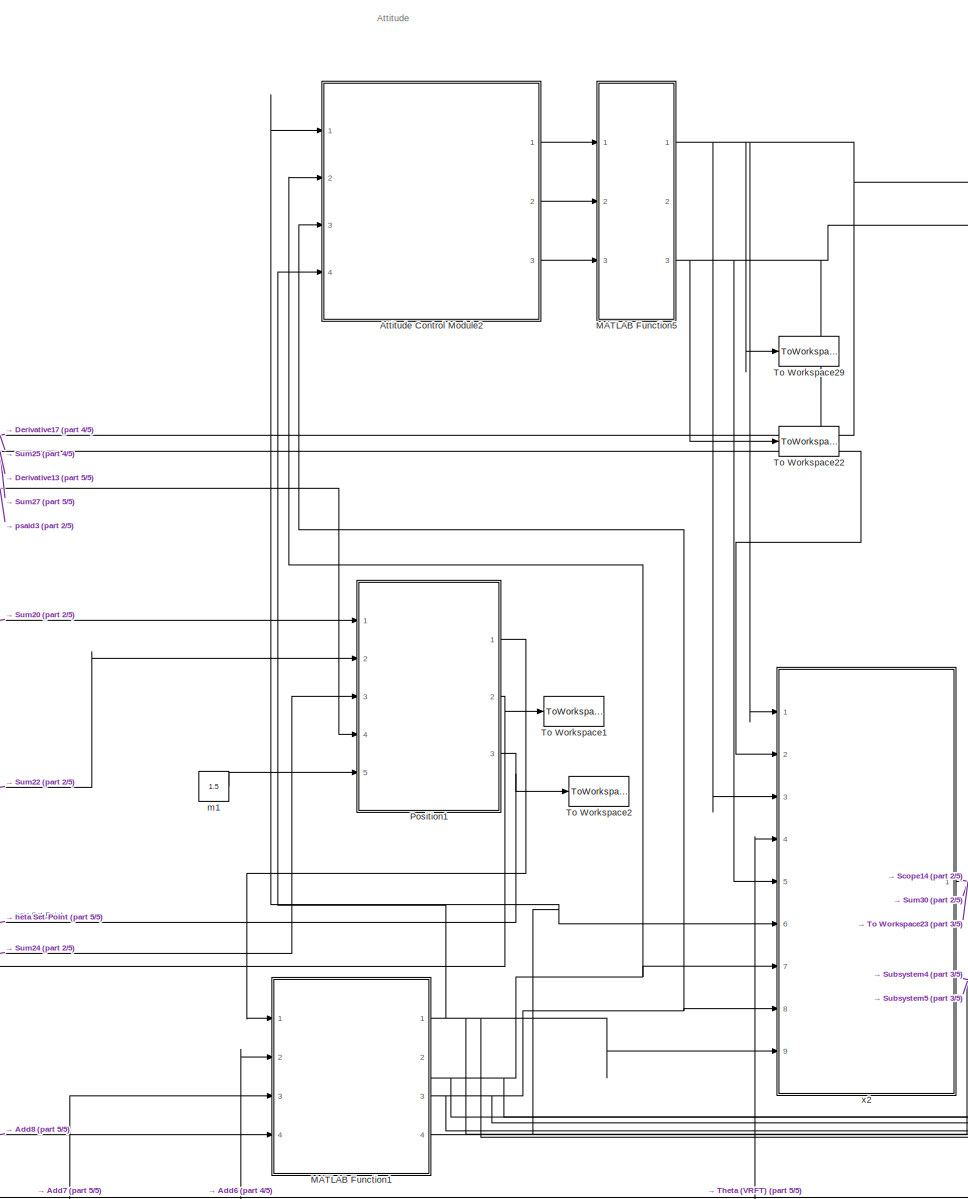
[diagram: root canvas - part 1/5, top center region]
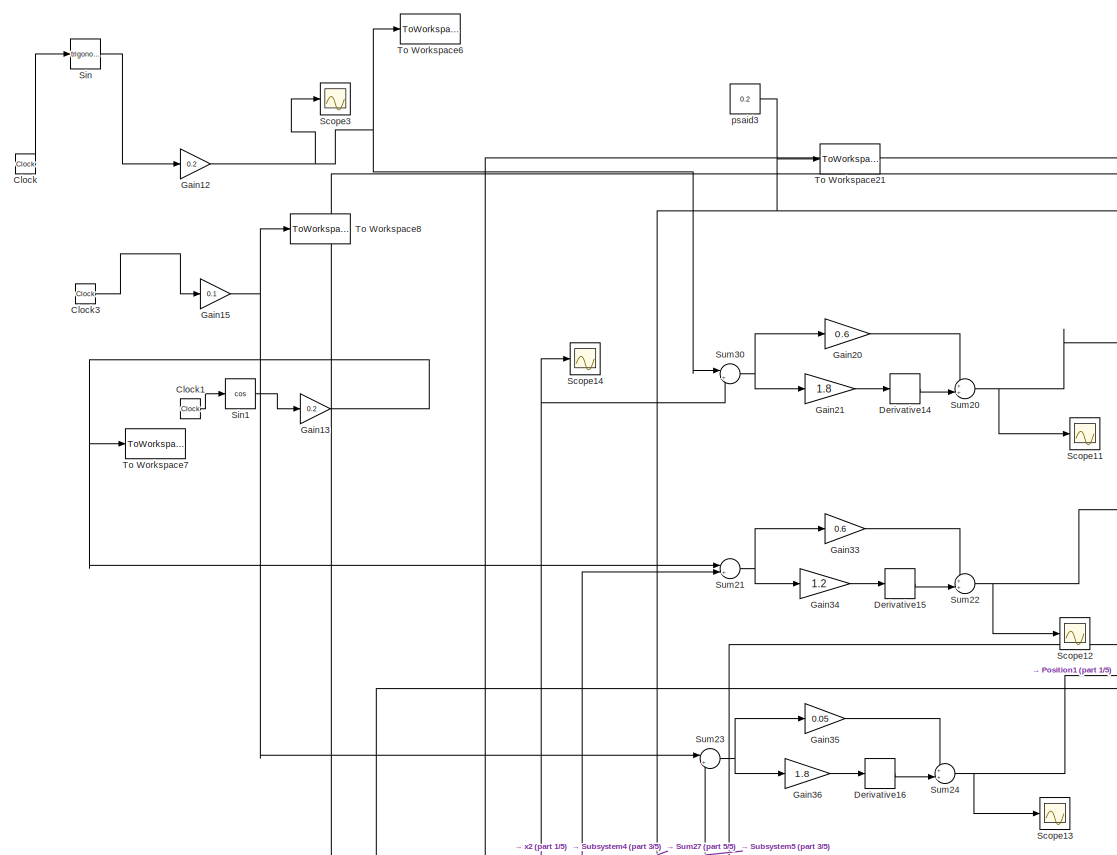
[diagram: root canvas - part 2/5, middle left region]
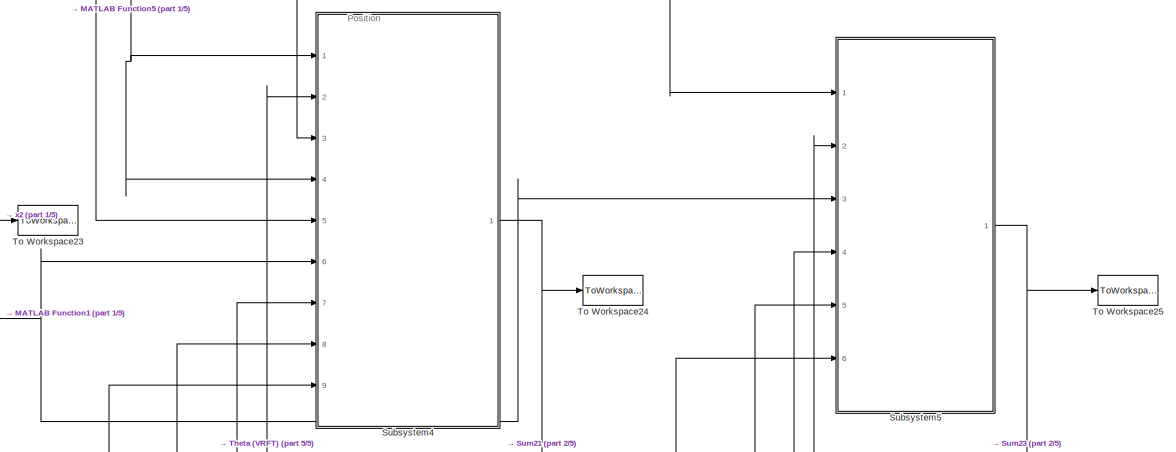
[diagram: root canvas - part 3/5, middle right region]
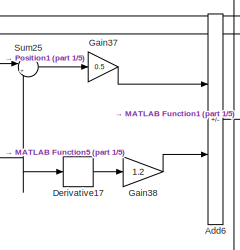
[diagram: root canvas - part 4/5, middle left region]
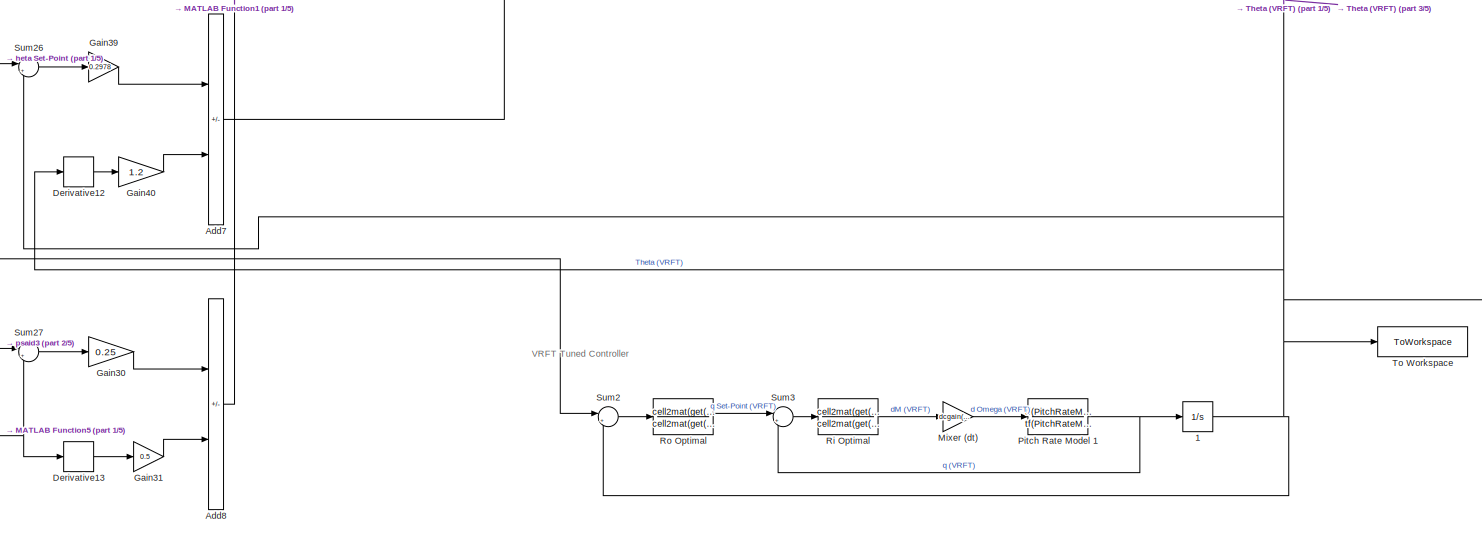
[diagram: root canvas - part 5/5, bottom center region]
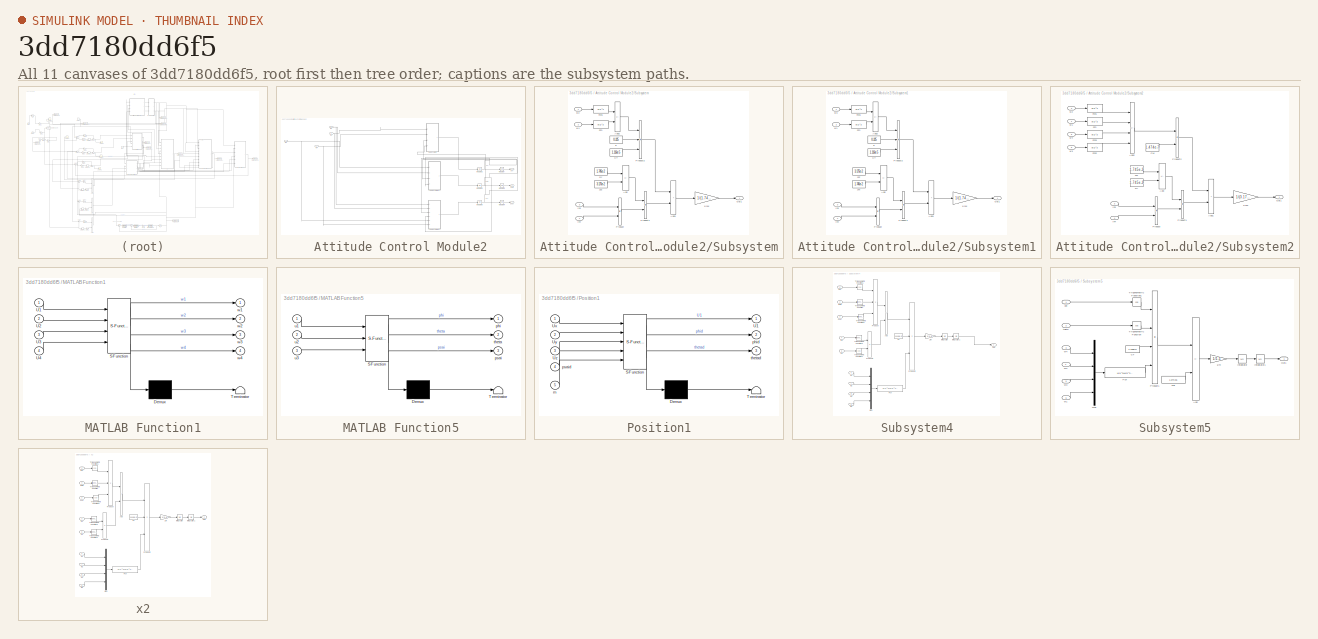
[diagram: thumbnail index - all 11 canvases of the model, root first then tree order]
MODEL slx_3dd7180dd6f5
KIND model
CONFIG AbsTol = auto
CONFIG EnableMultiTasking = off
CONFIG FixedStep = 0.1
CONFIG MaxStep = auto
CONFIG MinStep = auto
CONFIG RelTol = 1e-3
CONFIG SampleTimeConstraint = Unconstrained
CONFIG SolverName = FixedStepAuto
CONFIG StartTime = 0.0
CONFIG StopTime = 100
BLOCK [Integrator]  1
  ContinuousStateAttributes = 'PitchAngle'
  Ports = [1, 1]
BLOCK [Sum] Add6
  IconShape = rectangular
  Inputs = +-
  Ports = [2, 1]
BLOCK [Sum] Add7
  IconShape = rectangular
  Inputs = +-
  Ports = [2, 1]
BLOCK [Sum] Add8
  IconShape = rectangular
  Inputs = +-
  Ports = [2, 1]
BLOCK [SubSystem] Attitude Control Module2
  Ports = [4, 3]
  RequestExecContextInheritance = off
BLOCK [Integrator] Attitude Control Module2/Integrator
  Ports = [1, 1]
BLOCK [Integrator] Attitude Control Module2/Integrator1
  Ports = [1, 1]
BLOCK [Integrator] Attitude Control Module2/Integrator2
  Ports = [1, 1]
BLOCK [Integrator] Attitude Control Module2/Integrator3
  Ports = [1, 1]
BLOCK [Integrator] Attitude Control Module2/Integrator4
  Ports = [1, 1]
BLOCK [Integrator] Attitude Control Module2/Integrator5
  Ports = [1, 1]
BLOCK [SubSystem] Attitude Control Module2/Subsystem
  Ports = [4, 1]
  RequestExecContextInheritance = off
BLOCK [Gain] Attitude Control Module2/Subsystem/1//Jxx
  Gain = 1/(1.745e-2)
BLOCK [Sum] Attitude Control Module2/Subsystem/Add
  IconShape = rectangular
  Inputs = +-
  Ports = [2, 1]
BLOCK [Sum] Attitude Control Module2/Subsystem/Add1
  IconShape = rectangular
  Ports = [2, 1]
BLOCK [Sum] Attitude Control Module2/Subsystem/Add2
  IconShape = rectangular
  Inputs = +-
  Ports = [2, 1]
BLOCK [Constant] Attitude Control Module2/Subsystem/CT
  Value = 1.116e-5
BLOCK [Fcn] Attitude Control Module2/Subsystem/Fcn
  Expr = u(1)^2
BLOCK [Fcn] Attitude Control Module2/Subsystem/Fcn1
  Expr = u(1)^2
BLOCK [Inport] Attitude Control Module2/Subsystem/In3
  Port = 3
BLOCK [Inport] Attitude Control Module2/Subsystem/In4
  Port = 4
BLOCK [Constant] Attitude Control Module2/Subsystem/Jyy
  Value = 1.745e-2
BLOCK [Constant] Attitude Control Module2/Subsystem/Jzz 
  Value = 3.175e-2
BLOCK [Outport] Attitude Control Module2/Subsystem/Out1
  VectorParamsAs1DForOutWhenUnconnected = off
BLOCK [Product] Attitude Control Module2/Subsystem/Product
  Ports = [2, 1]
BLOCK [Product] Attitude Control Module2/Subsystem/Product1
  Ports = [2, 1]
BLOCK [Product] Attitude Control Module2/Subsystem/Product2
  Inputs = 3
  Ports = [3, 1]
BLOCK [Constant] Attitude Control Module2/Subsystem/d
  Value = 0.225
BLOCK [Inport] Attitude Control Module2/Subsystem/w2
BLOCK [Inport] Attitude Control Module2/Subsystem/w4
  Port = 2
BLOCK [SubSystem] Attitude Control Module2/Subsystem1
  Ports = [4, 1]
  RequestExecContextInheritance = off
BLOCK [Gain] Attitude Control Module2/Subsystem1/1//Jxx
  Gain = 1/(1.745e-2)
BLOCK [Sum] Attitude Control Module2/Subsystem1/Add
  IconShape = rectangular
  Inputs = +-
  Ports = [2, 1]
BLOCK [Sum] Attitude Control Module2/Subsystem1/Add1
  IconShape = rectangular
  Ports = [2, 1]
BLOCK [Sum] Attitude Control Module2/Subsystem1/Add2
  IconShape = rectangular
  Inputs = +-
  Ports = [2, 1]
BLOCK [Constant] Attitude Control Module2/Subsystem1/CT
  Value = 1.116e-5
BLOCK [Fcn] Attitude Control Module2/Subsystem1/Fcn
  Expr = u(1)^2
BLOCK [Fcn] Attitude Control Module2/Subsystem1/Fcn1
  Expr = u(1)^2
BLOCK [Inport] Attitude Control Module2/Subsystem1/In3
  Port = 3
BLOCK [Inport] Attitude Control Module2/Subsystem1/In4
  Port = 4
BLOCK [Constant] Attitude Control Module2/Subsystem1/Jxx
  Value = 1.745e-2
BLOCK [Constant] Attitude Control Module2/Subsystem1/Jzz
  Value = 3.175e-2
BLOCK [Outport] Attitude Control Module2/Subsystem1/Out1
  VectorParamsAs1DForOutWhenUnconnected = off
BLOCK [Product] Attitude Control Module2/Subsystem1/Product
  Ports = [2, 1]
BLOCK [Product] Attitude Control Module2/Subsystem1/Product1
  Ports = [2, 1]
BLOCK [Product] Attitude Control Module2/Subsystem1/Product2
  Inputs = 3
  Ports = [3, 1]
BLOCK [Constant] Attitude Control Module2/Subsystem1/d
  Value = 0.225
BLOCK [Inport] Attitude Control Module2/Subsystem1/w1
  Port = 2
BLOCK [Inport] Attitude Control Module2/Subsystem1/w3
BLOCK [SubSystem] Attitude Control Module2/Subsystem2
  Ports = [6, 1]
  RequestExecContextInheritance = off
BLOCK [Gain] Attitude Control Module2/Subsystem2/1//Jxx
  Gain = 1/(3.175e-2)
BLOCK [Sum] Attitude Control Module2/Subsystem2/Add
  IconShape = rectangular
  Inputs = +-
  Ports = [2, 1]
BLOCK [Sum] Attitude Control Module2/Subsystem2/Add1
  IconShape = rectangular
  Ports = [2, 1]
BLOCK [Sum] Attitude Control Module2/Subsystem2/Add2
  IconShape = rectangular
  Inputs = +-+-
  Ports = [4, 1]
BLOCK [Constant] Attitude Control Module2/Subsystem2/CM
  Value = 1.474e-7
BLOCK [Fcn] Attitude Control Module2/Subsystem2/Fcn
  Expr = u(1)^2
BLOCK [Fcn] Attitude Control Module2/Subsystem2/Fcn1
  Expr = u(1)^2
BLOCK [Fcn] Attitude Control Module2/Subsystem2/Fcn2
  Expr = u(1)^2
BLOCK [Fcn] Attitude Control Module2/Subsystem2/Fcn3
  Expr = u(1)^2
BLOCK [Inport] Attitude Control Module2/Subsystem2/In3
  Port = 3
BLOCK [Inport] Attitude Control Module2/Subsystem2/In4
  Port = 4
BLOCK [Constant] Attitude Control Module2/Subsystem2/Jxx
  Value = 1.745e-2
BLOCK [Constant] Attitude Control Module2/Subsystem2/Jyy
  Value = 1.745e-2
BLOCK [Outport] Attitude Control Module2/Subsystem2/Out1
  VectorParamsAs1DForOutWhenUnconnected = off
BLOCK [Product] Attitude Control Module2/Subsystem2/Product
  Ports = [2, 1]
BLOCK [Product] Attitude Control Module2/Subsystem2/Product1
  Ports = [2, 1]
BLOCK [Product] Attitude Control Module2/Subsystem2/Product2
  Ports = [2, 1]
BLOCK [Inport] Attitude Control Module2/Subsystem2/w1
BLOCK [Inport] Attitude Control Module2/Subsystem2/w2
  Port = 2
BLOCK [Inport] Attitude Control Module2/Subsystem2/w3
  Port = 5
BLOCK [Inport] Attitude Control Module2/Subsystem2/w4
  Port = 6
BLOCK [Outport] Attitude Control Module2/phi
  VectorParamsAs1DForOutWhenUnconnected = off
BLOCK [Outport] Attitude Control Module2/psai
  Port = 3
  VectorParamsAs1DForOutWhenUnconnected = off
BLOCK [Outport] Attitude Control Module2/theta
  Port = 2
  VectorParamsAs1DForOutWhenUnconnected = off
BLOCK [Inport] Attitude Control Module2/w1
  Port = 4
BLOCK [Inport] Attitude Control Module2/w2
  Port = 2
BLOCK [Inport] Attitude Control Module2/w3
  Port = 3
BLOCK [Inport] Attitude Control Module2/w4
BLOCK [Clock] Clock
BLOCK [Clock] Clock1
BLOCK [Clock] Clock3
BLOCK [Derivative] Derivative12
BLOCK [Derivative] Derivative13
BLOCK [Derivative] Derivative14
BLOCK [Derivative] Derivative15
BLOCK [Derivative] Derivative16
BLOCK [Derivative] Derivative17
BLOCK [Gain] Gain12
  Gain = 0.2
BLOCK [Gain] Gain13
  Gain = 0.2
BLOCK [Gain] Gain15
  Gain = 0.1
BLOCK [Gain] Gain20
  Gain = 0.6
BLOCK [Gain] Gain21
  Gain = 1.8
BLOCK [Gain] Gain30
  Gain = 0.25
BLOCK [Gain] Gain31
  Gain = 0.5
BLOCK [Gain] Gain33
  Gain = 0.6
BLOCK [Gain] Gain34
  Gain = 1.2
BLOCK [Gain] Gain35
  Gain = 0.05
BLOCK [Gain] Gain36
  Gain = 1.8
BLOCK [Gain] Gain37
  Gain = 0.5
BLOCK [Gain] Gain38
  Gain = 1.2
BLOCK [Gain] Gain39
  Gain = 0.2978
BLOCK [Gain] Gain40
  Gain = 1.2
BLOCK [SubSystem] MATLAB Function1
  ErrorFcn = Stateflow.Translate.translate
  PermitHierarchicalResolution = ExplicitOnly
  Ports = [4, 4]
  RequestExecContextInheritance = off
  SFBlockType = MATLAB Function
  TreatAsAtomicUnit = on
BLOCK [Demux] MATLAB Function1/ Demux 
  Outputs = 1
  Ports = [1, 1]
BLOCK [S-Function] MATLAB Function1/ SFunction 
  EnableBusSupport = on
  FunctionName = sf_sfun
  PortCounts = [4 5]
  Ports = [4, 5]
  SFcnIsStateOwnerBlock = off
  SFunctionDeploymentMode = off
  Tag = Stateflow S-Function 3
BLOCK [Terminator] MATLAB Function1/ Terminator 
BLOCK [Inport] MATLAB Function1/U1
BLOCK [Inport] MATLAB Function1/U2
  Port = 2
BLOCK [Inport] MATLAB Function1/U3
  Port = 3
BLOCK [Inport] MATLAB Function1/U4
  Port = 4
BLOCK [Outport] MATLAB Function1/w1
  VectorParamsAs1DForOutWhenUnconnected = off
BLOCK [Outport] MATLAB Function1/w2
  Port = 2
  VectorParamsAs1DForOutWhenUnconnected = off
BLOCK [Outport] MATLAB Function1/w3
  Port = 3
  VectorParamsAs1DForOutWhenUnconnected = off
BLOCK [Outport] MATLAB Function1/w4
  Port = 4
  VectorParamsAs1DForOutWhenUnconnected = off
BLOCK [SubSystem] MATLAB Function5
  ErrorFcn = Stateflow.Translate.translate
  PermitHierarchicalResolution = ExplicitOnly
  Ports = [3, 3]
  RequestExecContextInheritance = off
  SFBlockType = MATLAB Function
  TreatAsAtomicUnit = on
BLOCK [Demux] MATLAB Function5/ Demux 
  Outputs = 1
  Ports = [1, 1]
BLOCK [S-Function] MATLAB Function5/ SFunction 
  EnableBusSupport = on
  FunctionName = sf_sfun
  PortCounts = [3 4]
  Ports = [3, 4]
  SFcnIsStateOwnerBlock = off
  SFunctionDeploymentMode = off
  Tag = Stateflow S-Function 1
BLOCK [Terminator] MATLAB Function5/ Terminator 
BLOCK [Outport] MATLAB Function5/phi
  VectorParamsAs1DForOutWhenUnconnected = off
BLOCK [Outport] MATLAB Function5/psai
  Port = 3
  VectorParamsAs1DForOutWhenUnconnected = off
BLOCK [Outport] MATLAB Function5/theta
  Port = 2
  VectorParamsAs1DForOutWhenUnconnected = off
BLOCK [Inport] MATLAB Function5/u1
BLOCK [Inport] MATLAB Function5/u2
  Port = 2
BLOCK [Inport] MATLAB Function5/u3
  Port = 3
BLOCK [Gain] Mixer (dt)
  Gain = dcgain(Mixer)
BLOCK [TransferFcn] Pitch Rate Model 1
  ContinuousStateAttributes = 'PitchRate'
  Denominator = tf(PitchRateModel).Denominator{:}
  Numerator = tf(PitchRateModel).Numerator{:}
BLOCK [SubSystem] Position1
  ErrorFcn = Stateflow.Translate.translate
  PermitHierarchicalResolution = ExplicitOnly
  Ports = [5, 3]
  RequestExecContextInheritance = off
  SFBlockType = MATLAB Function
  TreatAsAtomicUnit = on
BLOCK [Demux] Position1/ Demux 
  Outputs = 1
  Ports = [1, 1]
BLOCK [S-Function] Position1/ SFunction 
  EnableBusSupport = on
  FunctionName = sf_sfun
  PortCounts = [5 4]
  Ports = [5, 4]
  SFcnIsStateOwnerBlock = off
  SFunctionDeploymentMode = off
  Tag = Stateflow S-Function 4
BLOCK [Terminator] Position1/ Terminator 
BLOCK [Outport] Position1/U1
  VectorParamsAs1DForOutWhenUnconnected = off
BLOCK [Inport] Position1/Ux
BLOCK [Inport] Position1/Uy
  Port = 2
BLOCK [Inport] Position1/Uz
  Port = 3
BLOCK [Inport] Position1/m
  Port = 5
BLOCK [Outport] Position1/phid
  Port = 2
  VectorParamsAs1DForOutWhenUnconnected = off
BLOCK [Inport] Position1/psaid
  Port = 4
BLOCK [Outport] Position1/thetad
  Port = 3
  VectorParamsAs1DForOutWhenUnconnected = off
BLOCK [TransferFcn] Ri Optimal 
  Denominator = cell2mat(get(tf(OptimalInnerController), 'Denominator'))
  Numerator = cell2mat(get(tf(OptimalInnerController), 'Numerator'))
BLOCK [TransferFcn] Ro Optimal
  Denominator = cell2mat(get(tf(OptimalOuterController), 'Denominator'))
  Numerator = cell2mat(get(tf(OptimalOuterController), 'Numerator'))
BLOCK [Scope] Scope11
  Floating = off
  NumInputPorts = 1
  Ports = [1]
  ScopeSpecificationString = Simulink.scopes.TimeScopeBlockCfg('CurrentConfiguration', extmgr.ConfigurationSet(extmgr.Configuration('Core','General UI',true),extmgr.Configuration('Core','Source UI',true),extmgr.Configuration('Sources','WiredSimulink',true,'DataLoggingVariableName','ScopeData1'),extmgr.Configuration('Visuals','Time Domain',true,'SerializedDisplays',{struct('MinYLimReal','-0.19028','MaxYLimReal','0.21254','YLab...<+1391ch>
BLOCK [Scope] Scope12
  Floating = off
  NumInputPorts = 1
  Ports = [1]
  ScopeSpecificationString = Simulink.scopes.TimeScopeBlockCfg('CurrentConfiguration', extmgr.ConfigurationSet(extmgr.Configuration('Core','General UI',true),extmgr.Configuration('Core','Source UI',true),extmgr.Configuration('Sources','WiredSimulink',true,'DataLoggingVariableName','ScopeData2'),extmgr.Configuration('Visuals','Time Domain',true,'SerializedDisplays',{struct('MinYLimReal','-0.13767','MaxYLimReal','0.10974','YLab...<+1364ch>
BLOCK [Scope] Scope13
  Floating = off
  NumInputPorts = 1
  Ports = [1]
  ScopeSpecificationString = Simulink.scopes.TimeScopeBlockCfg('CurrentConfiguration', extmgr.ConfigurationSet(extmgr.Configuration('Core','General UI',true),extmgr.Configuration('Core','Source UI',true),extmgr.Configuration('Sources','WiredSimulink',true,'DataLoggingVariableName','ScopeData3'),extmgr.Configuration('Visuals','Time Domain',true,'SerializedDisplays',{struct('MinYLimReal','-0.00636','MaxYLimReal','0.0364','YLabe...<+1360ch>
BLOCK [Scope] Scope14
  Floating = off
  NumInputPorts = 1
  Ports = [1]
  ScopeSpecificationString = Simulink.scopes.TimeScopeBlockCfg('CurrentConfiguration', extmgr.ConfigurationSet(extmgr.Configuration('Core','General UI',true),extmgr.Configuration('Core','Source UI',true),extmgr.Configuration('Sources','WiredSimulink',true,'DataLoggingVariableName','ScopeData4'),extmgr.Configuration('Visuals','Time Domain',true,'SerializedDisplays',{struct('MinYLimReal','-8.03998','MaxYLimReal','1.82933','YLab...<+1361ch>
BLOCK [Scope] Scope3
  Floating = off
  NumInputPorts = 1
  Ports = [1]
  ScopeSpecificationString = Simulink.scopes.TimeScopeBlockCfg('CurrentConfiguration', extmgr.ConfigurationSet(extmgr.Configuration('Core','General UI',true),extmgr.Configuration('Core','Source UI',true),extmgr.Configuration('Sources','WiredSimulink',true),extmgr.Configuration('Visuals','Time Domain',true,'SerializedDisplays',{struct('MinYLimReal','-2.5','MaxYLimReal','2.5','YLabelReal','','MinYLimMag','0.00000','MaxYLimMag',...<+1340ch>
BLOCK [Trigonometry] Sin
  Ports = [1, 1]
BLOCK [Trigonometry] Sin1
  Operator = cos
  Ports = [1, 1]
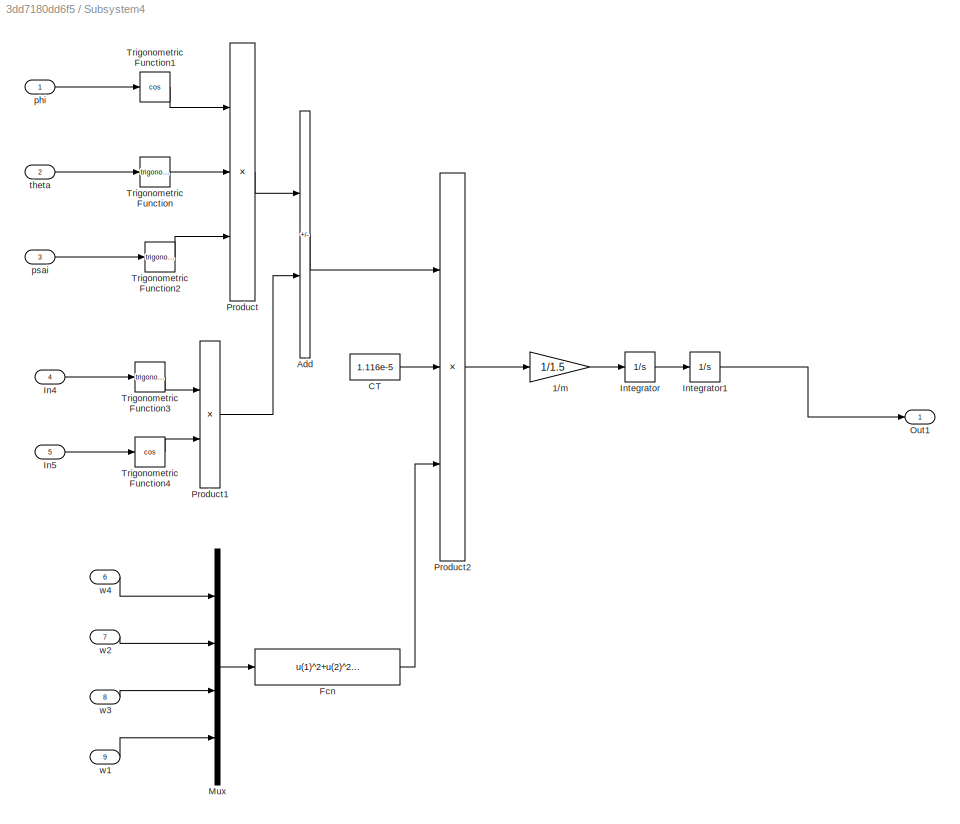
BLOCK [SubSystem] Subsystem4
  Ports = [9, 1]
  RequestExecContextInheritance = off
BLOCK [Gain] Subsystem4/1//m
  Gain = 1/1.5
BLOCK [Sum] Subsystem4/Add
  IconShape = rectangular
  Inputs = +-
  Ports = [2, 1]
BLOCK [Constant] Subsystem4/CT
  Value = 1.116e-5
BLOCK [Fcn] Subsystem4/Fcn
  Expr = u(1)^2+u(2)^2+u(3)^2+u(4)^2
BLOCK [Inport] Subsystem4/In4
  Port = 4
BLOCK [Inport] Subsystem4/In5
  Port = 5
BLOCK [Integrator] Subsystem4/Integrator
  Ports = [1, 1]
BLOCK [Integrator] Subsystem4/Integrator1
  Ports = [1, 1]
BLOCK [Mux] Subsystem4/Mux
  DisplayOption = bar
  Ports = [4, 1]
BLOCK [Outport] Subsystem4/Out1
  VectorParamsAs1DForOutWhenUnconnected = off
BLOCK [Product] Subsystem4/Product
  Inputs = 3
  Ports = [3, 1]
BLOCK [Product] Subsystem4/Product1
  Ports = [2, 1]
BLOCK [Product] Subsystem4/Product2
  Inputs = 3
  Ports = [3, 1]
BLOCK [Trigonometry] Subsystem4/Trigonometric Function
  Ports = [1, 1]
BLOCK [Trigonometry] Subsystem4/Trigonometric Function1
  Operator = cos
  Ports = [1, 1]
BLOCK [Trigonometry] Subsystem4/Trigonometric Function2
  Ports = [1, 1]
BLOCK [Trigonometry] Subsystem4/Trigonometric Function3
  Ports = [1, 1]
BLOCK [Trigonometry] Subsystem4/Trigonometric Function4
  Operator = cos
  Ports = [1, 1]
BLOCK [Inport] Subsystem4/phi
BLOCK [Inport] Subsystem4/psai
  Port = 3
BLOCK [Inport] Subsystem4/theta
  Port = 2
BLOCK [Inport] Subsystem4/w1
  Port = 9
BLOCK [Inport] Subsystem4/w2
  Port = 7
BLOCK [Inport] Subsystem4/w3
  Port = 8
BLOCK [Inport] Subsystem4/w4
  Port = 6
BLOCK [SubSystem] Subsystem5
  Ports = [6, 1]
  RequestExecContextInheritance = off
BLOCK [Gain] Subsystem5/1//m
  Gain = 1/1.5
BLOCK [Sum] Subsystem5/Add
  IconShape = rectangular
  Inputs = +-
  Ports = [2, 1]
BLOCK [Constant] Subsystem5/CT
  Value = 1.116e-5
BLOCK [Fcn] Subsystem5/Fcn
  Expr = u(1)^2+u(2)^2+u(3)^2+u(4)^2
BLOCK [Integrator] Subsystem5/Integrator
  Ports = [1, 1]
BLOCK [Integrator] Subsystem5/Integrator1
  Ports = [1, 1]
BLOCK [Mux] Subsystem5/Mux
  DisplayOption = bar
  Ports = [4, 1]
BLOCK [Outport] Subsystem5/Out1
  VectorParamsAs1DForOutWhenUnconnected = off
BLOCK [Product] Subsystem5/Product1
  Inputs = 4
  Ports = [4, 1]
BLOCK [Trigonometry] Subsystem5/Trigonometric Function
  Operator = cos
  Ports = [1, 1]
BLOCK [Trigonometry] Subsystem5/Trigonometric Function1
  Operator = cos
  Ports = [1, 1]
BLOCK [Constant] Subsystem5/mg
  Value = 1.5*9.81
BLOCK [Inport] Subsystem5/phi
BLOCK [Inport] Subsystem5/theta
  Port = 2
BLOCK [Inport] Subsystem5/w1
  Port = 6
BLOCK [Inport] Subsystem5/w2
  Port = 4
BLOCK [Inport] Subsystem5/w3
  Port = 5
BLOCK [Inport] Subsystem5/w4
  Port = 3
BLOCK [Sum] Sum2
  Inputs = |+-
  Ports = [2, 1]
BLOCK [Sum] Sum20
  Inputs = ++|
  Ports = [2, 1]
BLOCK [Sum] Sum21
  Inputs = |+-
  Ports = [2, 1]
BLOCK [Sum] Sum22
  Inputs = ++|
  Ports = [2, 1]
BLOCK [Sum] Sum23
  Inputs = |+-
  Ports = [2, 1]
BLOCK [Sum] Sum24
  Inputs = ++|
  Ports = [2, 1]
BLOCK [Sum] Sum25
  Inputs = |+-
  Ports = [2, 1]
BLOCK [Sum] Sum26
  Inputs = |+-
  Ports = [2, 1]
BLOCK [Sum] Sum27
  Inputs = |+-
  Ports = [2, 1]
BLOCK [Sum] Sum3
  Inputs = |+-
  Ports = [2, 1]
BLOCK [Sum] Sum30
  Inputs = |+-
  Ports = [2, 1]
BLOCK [ToWorkspace] To Workspace
  FixptAsFi = on
  MaxDataPoints = inf
  Ports = [1]
  SampleTime = -1
  VariableName = theta
BLOCK [ToWorkspace] To Workspace1
  FixptAsFi = on
  MaxDataPoints = inf
  Ports = [1]
  SampleTime = -1
  VariableName = phid
BLOCK [ToWorkspace] To Workspace2
  FixptAsFi = on
  MaxDataPoints = inf
  Ports = [1]
  SampleTime = -1
  VariableName = thetad
BLOCK [ToWorkspace] To Workspace21
  FixptAsFi = on
  MaxDataPoints = inf
  Ports = [1]
  SampleTime = -1
  VariableName = psid
BLOCK [ToWorkspace] To Workspace22
  FixptAsFi = on
  MaxDataPoints = inf
  Ports = [1]
  SampleTime = -1
  VariableName = psi
BLOCK [ToWorkspace] To Workspace23
  FixptAsFi = on
  MaxDataPoints = inf
  Ports = [1]
  SampleTime = -1
  VariableName = x
BLOCK [ToWorkspace] To Workspace24
  FixptAsFi = on
  MaxDataPoints = inf
  Ports = [1]
  SampleTime = -1
  VariableName = y
BLOCK [ToWorkspace] To Workspace25
  FixptAsFi = on
  MaxDataPoints = inf
  Ports = [1]
  SampleTime = -1
  VariableName = z
BLOCK [ToWorkspace] To Workspace29
  FixptAsFi = on
  MaxDataPoints = inf
  Ports = [1]
  SampleTime = -1
  VariableName = phi
BLOCK [ToWorkspace] To Workspace6
  FixptAsFi = on
  MaxDataPoints = inf
  Ports = [1]
  SampleTime = -1
  VariableName = xd
BLOCK [ToWorkspace] To Workspace7
  FixptAsFi = on
  MaxDataPoints = inf
  Ports = [1]
  SampleTime = -1
  VariableName = yd
BLOCK [ToWorkspace] To Workspace8
  FixptAsFi = on
  MaxDataPoints = inf
  Ports = [1]
  SampleTime = -1
  VariableName = zd
BLOCK [Constant] m1
  Value = 1.5
BLOCK [Constant] psaid3
  Value = 0.2
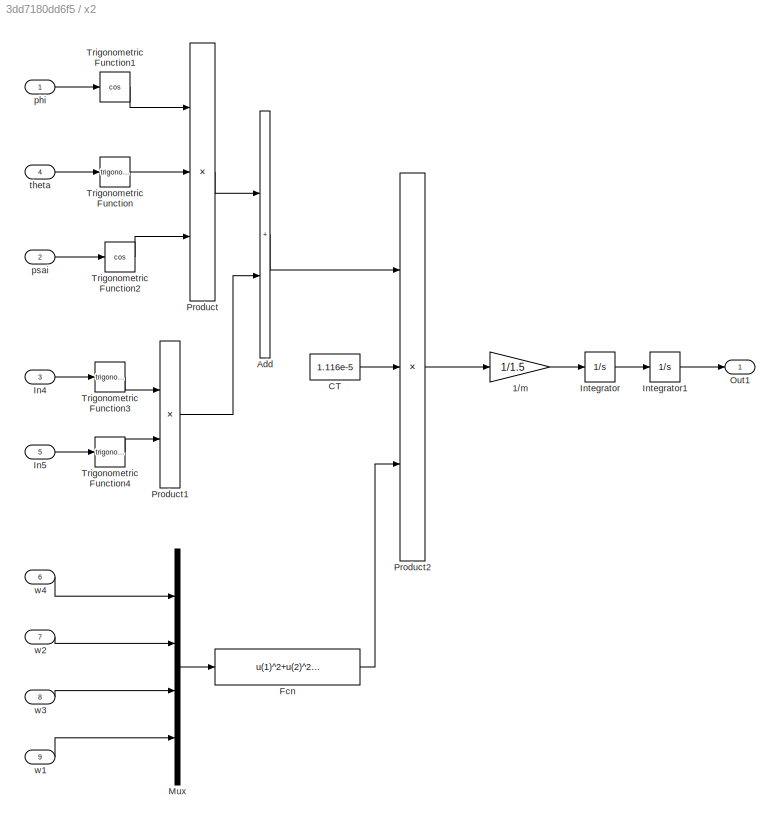
BLOCK [SubSystem] x2
  Ports = [9, 1]
  RequestExecContextInheritance = off
BLOCK [Gain] x2/1//m
  Gain = 1/1.5
BLOCK [Sum] x2/Add
  IconShape = rectangular
  Ports = [2, 1]
BLOCK [Constant] x2/CT
  Value = 1.116e-5
BLOCK [Fcn] x2/Fcn
  Expr = u(1)^2+u(2)^2+u(3)^2+u(4)^2
BLOCK [Inport] x2/In4
  Port = 3
BLOCK [Inport] x2/In5
  Port = 5
BLOCK [Integrator] x2/Integrator
  Ports = [1, 1]
BLOCK [Integrator] x2/Integrator1
  Ports = [1, 1]
BLOCK [Mux] x2/Mux
  DisplayOption = bar
  Ports = [4, 1]
BLOCK [Outport] x2/Out1
  VectorParamsAs1DForOutWhenUnconnected = off
BLOCK [Product] x2/Product
  Inputs = 3
  Ports = [3, 1]
BLOCK [Product] x2/Product1
  Ports = [2, 1]
BLOCK [Product] x2/Product2
  Inputs = 3
  Ports = [3, 1]
BLOCK [Trigonometry] x2/Trigonometric Function
  Ports = [1, 1]
BLOCK [Trigonometry] x2/Trigonometric Function1
  Operator = cos
  Ports = [1, 1]
BLOCK [Trigonometry] x2/Trigonometric Function2
  Operator = cos
  Ports = [1, 1]
BLOCK [Trigonometry] x2/Trigonometric Function3
  Ports = [1, 1]
BLOCK [Trigonometry] x2/Trigonometric Function4
  Ports = [1, 1]
BLOCK [Inport] x2/phi
BLOCK [Inport] x2/psai
  Port = 2
BLOCK [Inport] x2/theta
  Port = 4
BLOCK [Inport] x2/w1
  Port = 9
BLOCK [Inport] x2/w2
  Port = 7
BLOCK [Inport] x2/w3
  Port = 8
BLOCK [Inport] x2/w4
  Port = 6
ANNOTATION (root): Position
ANNOTATION (root): Attitude
ANNOTATION (root): VRFT Tuned Controller
ANNOTATION Attitude Control Module2: phi
ANNOTATION Attitude Control Module2: psi
ANNOTATION Attitude Control Module2: theta
NET  1:1 -> Derivative12:1, Subsystem4:2, Subsystem5:2, Sum26:2, Sum2:2, To Workspace:1, x2:4
LINE Add6:1 -> MATLAB Function1:2
LINE Add7:1 -> MATLAB Function1:3
LINE Add8:1 -> MATLAB Function1:4
NET Attitude Control Module2/Integrator1:1 -> Attitude Control Module2/Integrator:1, Attitude Control Module2/Subsystem1:3, Attitude Control Module2/Subsystem2:3
LINE Attitude Control Module2/Integrator2:1 -> Attitude Control Module2/theta:1
NET Attitude Control Module2/Integrator3:1 -> Attitude Control Module2/Integrator2:1, Attitude Control Module2/Subsystem2:4, Attitude Control Module2/Subsystem:3
LINE Attitude Control Module2/Integrator4:1 -> Attitude Control Module2/psai:1
NET Attitude Control Module2/Integrator5:1 -> Attitude Control Module2/Integrator4:1, Attitude Control Module2/Subsystem1:4, Attitude Control Module2/Subsystem:4
LINE Attitude Control Module2/Integrator:1 -> Attitude Control Module2/phi:1
LINE Attitude Control Module2/Subsystem/1//Jxx:1 -> Attitude Control Module2/Subsystem/Out1:1
LINE Attitude Control Module2/Subsystem/Add1:1 -> Attitude Control Module2/Subsystem/1//Jxx:1
LINE Attitude Control Module2/Subsystem/Add2:1 -> Attitude Control Module2/Subsystem/Product2:1
LINE Attitude Control Module2/Subsystem/Add:1 -> Attitude Control Module2/Subsystem/Product1:1
LINE Attitude Control Module2/Subsystem/CT:1 -> Attitude Control Module2/Subsystem/Product2:3
LINE Attitude Control Module2/Subsystem/Fcn1:1 -> Attitude Control Module2/Subsystem/Add2:1
LINE Attitude Control Module2/Subsystem/Fcn:1 -> Attitude Control Module2/Subsystem/Add2:2
LINE Attitude Control Module2/Subsystem/In3:1 -> Attitude Control Module2/Subsystem/Product:1
LINE Attitude Control Module2/Subsystem/In4:1 -> Attitude Control Module2/Subsystem/Product:2
LINE Attitude Control Module2/Subsystem/Jyy:1 -> Attitude Control Module2/Subsystem/Add:1
LINE Attitude Control Module2/Subsystem/Jzz :1 -> Attitude Control Module2/Subsystem/Add:2
LINE Attitude Control Module2/Subsystem/Product1:1 -> Attitude Control Module2/Subsystem/Add1:2
LINE Attitude Control Module2/Subsystem/Product2:1 -> Attitude Control Module2/Subsystem/Add1:1
LINE Attitude Control Module2/Subsystem/Product:1 -> Attitude Control Module2/Subsystem/Product1:2
LINE Attitude Control Module2/Subsystem/d:1 -> Attitude Control Module2/Subsystem/Product2:2
LINE Attitude Control Module2/Subsystem/w2:1 -> Attitude Control Module2/Subsystem/Fcn1:1
LINE Attitude Control Module2/Subsystem/w4:1 -> Attitude Control Module2/Subsystem/Fcn:1
LINE Attitude Control Module2/Subsystem1/1//Jxx:1 -> Attitude Control Module2/Subsystem1/Out1:1
LINE Attitude Control Module2/Subsystem1/Add1:1 -> Attitude Control Module2/Subsystem1/1//Jxx:1
LINE Attitude Control Module2/Subsystem1/Add2:1 -> Attitude Control Module2/Subsystem1/Product2:1
LINE Attitude Control Module2/Subsystem1/Add:1 -> Attitude Control Module2/Subsystem1/Product1:1
LINE Attitude Control Module2/Subsystem1/CT:1 -> Attitude Control Module2/Subsystem1/Product2:3
LINE Attitude Control Module2/Subsystem1/Fcn1:1 -> Attitude Control Module2/Subsystem1/Add2:1
LINE Attitude Control Module2/Subsystem1/Fcn:1 -> Attitude Control Module2/Subsystem1/Add2:2
LINE Attitude Control Module2/Subsystem1/In3:1 -> Attitude Control Module2/Subsystem1/Product:1
LINE Attitude Control Module2/Subsystem1/In4:1 -> Attitude Control Module2/Subsystem1/Product:2
LINE Attitude Control Module2/Subsystem1/Jxx:1 -> Attitude Control Module2/Subsystem1/Add:2
LINE Attitude Control Module2/Subsystem1/Jzz:1 -> Attitude Control Module2/Subsystem1/Add:1
LINE Attitude Control Module2/Subsystem1/Product1:1 -> Attitude Control Module2/Subsystem1/Add1:2
LINE Attitude Control Module2/Subsystem1/Product2:1 -> Attitude Control Module2/Subsystem1/Add1:1
LINE Attitude Control Module2/Subsystem1/Product:1 -> Attitude Control Module2/Subsystem1/Product1:2
LINE Attitude Control Module2/Subsystem1/d:1 -> Attitude Control Module2/Subsystem1/Product2:2
LINE Attitude Control Module2/Subsystem1/w1:1 -> Attitude Control Module2/Subsystem1/Fcn:1
LINE Attitude Control Module2/Subsystem1/w3:1 -> Attitude Control Module2/Subsystem1/Fcn1:1
LINE Attitude Control Module2/Subsystem1:1 -> Attitude Control Module2/Integrator3:1
LINE Attitude Control Module2/Subsystem2/1//Jxx:1 -> Attitude Control Module2/Subsystem2/Out1:1
LINE Attitude Control Module2/Subsystem2/Add1:1 -> Attitude Control Module2/Subsystem2/1//Jxx:1
LINE Attitude Control Module2/Subsystem2/Add2:1 -> Attitude Control Module2/Subsystem2/Product2:1
LINE Attitude Control Module2/Subsystem2/Add:1 -> Attitude Control Module2/Subsystem2/Product1:1
LINE Attitude Control Module2/Subsystem2/CM:1 -> Attitude Control Module2/Subsystem2/Product2:2
LINE Attitude Control Module2/Subsystem2/Fcn1:1 -> Attitude Control Module2/Subsystem2/Add2:1
LINE Attitude Control Module2/Subsystem2/Fcn2:1 -> Attitude Control Module2/Subsystem2/Add2:4
LINE Attitude Control Module2/Subsystem2/Fcn3:1 -> Attitude Control Module2/Subsystem2/Add2:3
LINE Attitude Control Module2/Subsystem2/Fcn:1 -> Attitude Control Module2/Subsystem2/Add2:2
LINE Attitude Control Module2/Subsystem2/In3:1 -> Attitude Control Module2/Subsystem2/Product:1
LINE Attitude Control Module2/Subsystem2/In4:1 -> Attitude Control Module2/Subsystem2/Product:2
LINE Attitude Control Module2/Subsystem2/Jxx:1 -> Attitude Control Module2/Subsystem2/Add:1
LINE Attitude Control Module2/Subsystem2/Jyy:1 -> Attitude Control Module2/Subsystem2/Add:2
LINE Attitude Control Module2/Subsystem2/Product1:1 -> Attitude Control Module2/Subsystem2/Add1:2
LINE Attitude Control Module2/Subsystem2/Product2:1 -> Attitude Control Module2/Subsystem2/Add1:1
LINE Attitude Control Module2/Subsystem2/Product:1 -> Attitude Control Module2/Subsystem2/Product1:2
LINE Attitude Control Module2/Subsystem2/w1:1 -> Attitude Control Module2/Subsystem2/Fcn:1
LINE Attitude Control Module2/Subsystem2/w2:1 -> Attitude Control Module2/Subsystem2/Fcn1:1
LINE Attitude Control Module2/Subsystem2/w3:1 -> Attitude Control Module2/Subsystem2/Fcn2:1
LINE Attitude Control Module2/Subsystem2/w4:1 -> Attitude Control Module2/Subsystem2/Fcn3:1
LINE Attitude Control Module2/Subsystem2:1 -> Attitude Control Module2/Integrator5:1
LINE Attitude Control Module2/Subsystem:1 -> Attitude Control Module2/Integrator1:1
NET Attitude Control Module2/w1:1 -> Attitude Control Module2/Subsystem1:2, Attitude Control Module2/Subsystem2:1
NET Attitude Control Module2/w2:1 -> Attitude Control Module2/Subsystem2:2, Attitude Control Module2/Subsystem:1
NET Attitude Control Module2/w3:1 -> Attitude Control Module2/Subsystem1:1, Attitude Control Module2/Subsystem2:5
NET Attitude Control Module2/w4:1 -> Attitude Control Module2/Subsystem2:6, Attitude Control Module2/Subsystem:2
LINE Attitude Control Module2:1 -> MATLAB Function5:1
LINE Attitude Control Module2:2 -> MATLAB Function5:2
LINE Attitude Control Module2:3 -> MATLAB Function5:3
LINE Clock1:1 -> Sin1:1
LINE Clock3:1 -> Gain15:1
LINE Clock:1 -> Sin:1
LINE Derivative12:1 -> Gain40:1
LINE Derivative13:1 -> Gain31:1
LINE Derivative14:1 -> Sum20:2
LINE Derivative15:1 -> Sum22:2
LINE Derivative16:1 -> Sum24:2
LINE Derivative17:1 -> Gain38:1
NET Gain12:1 -> Scope3:1, Sum30:1, To Workspace6:1
NET Gain13:1 -> Sum21:1, To Workspace7:1
NET Gain15:1 -> Sum23:1, To Workspace8:1
LINE Gain20:1 -> Sum20:1
LINE Gain21:1 -> Derivative14:1
LINE Gain30:1 -> Add8:1
LINE Gain31:1 -> Add8:2
LINE Gain33:1 -> Sum22:1
LINE Gain34:1 -> Derivative15:1
LINE Gain35:1 -> Sum24:1
LINE Gain36:1 -> Derivative16:1
LINE Gain37:1 -> Add6:1
LINE Gain38:1 -> Add6:2
LINE Gain39:1 -> Add7:1
LINE Gain40:1 -> Add7:2
NET MATLAB Function1:1 -> Attitude Control Module2:4, Subsystem4:9, Subsystem5:6, x2:9
NET MATLAB Function1:2 -> Attitude Control Module2:2, Subsystem4:7, Subsystem5:4, x2:7
NET MATLAB Function1:3 -> Attitude Control Module2:3, Subsystem4:8, Subsystem5:5, x2:8
NET MATLAB Function1:4 -> Attitude Control Module2:1, Subsystem4:6, Subsystem5:3, x2:6
NET MATLAB Function5:1 -> Derivative17:1, Subsystem4:1, Subsystem4:4, Subsystem5:1, Sum25:2, To Workspace29:1, x2:1, x2:3
NET MATLAB Function5:3 -> Derivative13:1, Subsystem4:3, Subsystem4:5, Sum27:2, To Workspace22:1, x2:2, x2:5
LINE Mixer (dt):1 -> Pitch Rate Model 1:1
NET Pitch Rate Model 1:1 ->  1:1, Sum3:2
LINE Position1:1 -> MATLAB Function1:1
NET Position1:2 -> Sum25:1, To Workspace1:1
NET Position1:3 -> Sum26:1, Sum2:1, To Workspace2:1
LINE Ri Optimal :1 -> Mixer (dt):1
LINE Ro Optimal:1 -> Sum3:1
LINE Sin1:1 -> Gain13:1
LINE Sin:1 -> Gain12:1
LINE Subsystem4/1//m:1 -> Subsystem4/Integrator:1
LINE Subsystem4/Add:1 -> Subsystem4/Product2:1
LINE Subsystem4/CT:1 -> Subsystem4/Product2:2
LINE Subsystem4/Fcn:1 -> Subsystem4/Product2:3
LINE Subsystem4/In4:1 -> Subsystem4/Trigonometric Function3:1
LINE Subsystem4/In5:1 -> Subsystem4/Trigonometric Function4:1
LINE Subsystem4/Integrator1:1 -> Subsystem4/Out1:1
LINE Subsystem4/Integrator:1 -> Subsystem4/Integrator1:1
LINE Subsystem4/Mux:1 -> Subsystem4/Fcn:1
LINE Subsystem4/Product1:1 -> Subsystem4/Add:2
LINE Subsystem4/Product2:1 -> Subsystem4/1//m:1
LINE Subsystem4/Product:1 -> Subsystem4/Add:1
LINE Subsystem4/Trigonometric Function1:1 -> Subsystem4/Product:1
LINE Subsystem4/Trigonometric Function2:1 -> Subsystem4/Product:3
LINE Subsystem4/Trigonometric Function3:1 -> Subsystem4/Product1:1
LINE Subsystem4/Trigonometric Function4:1 -> Subsystem4/Product1:2
LINE Subsystem4/Trigonometric Function:1 -> Subsystem4/Product:2
LINE Subsystem4/phi:1 -> Subsystem4/Trigonometric Function1:1
LINE Subsystem4/psai:1 -> Subsystem4/Trigonometric Function2:1
LINE Subsystem4/theta:1 -> Subsystem4/Trigonometric Function:1
LINE Subsystem4/w1:1 -> Subsystem4/Mux:4
LINE Subsystem4/w2:1 -> Subsystem4/Mux:2
LINE Subsystem4/w3:1 -> Subsystem4/Mux:3
LINE Subsystem4/w4:1 -> Subsystem4/Mux:1
NET Subsystem4:1 -> Sum21:2, To Workspace24:1
LINE Subsystem5/1//m:1 -> Subsystem5/Integrator:1
LINE Subsystem5/Add:1 -> Subsystem5/1//m:1
LINE Subsystem5/CT:1 -> Subsystem5/Product1:3
LINE Subsystem5/Fcn:1 -> Subsystem5/Product1:4
LINE Subsystem5/Integrator1:1 -> Subsystem5/Out1:1
LINE Subsystem5/Integrator:1 -> Subsystem5/Integrator1:1
LINE Subsystem5/Mux:1 -> Subsystem5/Fcn:1
LINE Subsystem5/Product1:1 -> Subsystem5/Add:1
LINE Subsystem5/Trigonometric Function1:1 -> Subsystem5/Product1:1
LINE Subsystem5/Trigonometric Function:1 -> Subsystem5/Product1:2
LINE Subsystem5/mg:1 -> Subsystem5/Add:2
LINE Subsystem5/phi:1 -> Subsystem5/Trigonometric Function1:1
LINE Subsystem5/theta:1 -> Subsystem5/Trigonometric Function:1
LINE Subsystem5/w1:1 -> Subsystem5/Mux:4
LINE Subsystem5/w2:1 -> Subsystem5/Mux:2
LINE Subsystem5/w3:1 -> Subsystem5/Mux:3
LINE Subsystem5/w4:1 -> Subsystem5/Mux:1
NET Subsystem5:1 -> Sum23:2, To Workspace25:1
NET Sum20:1 -> Position1:1, Scope11:1
NET Sum21:1 -> Gain33:1, Gain34:1
NET Sum22:1 -> Position1:2, Scope12:1
NET Sum23:1 -> Gain35:1, Gain36:1
NET Sum24:1 -> Position1:3, Scope13:1
LINE Sum25:1 -> Gain37:1
LINE Sum26:1 -> Gain39:1
LINE Sum27:1 -> Gain30:1
LINE Sum2:1 -> Ro Optimal:1
NET Sum30:1 -> Gain20:1, Gain21:1
LINE Sum3:1 -> Ri Optimal :1
LINE m1:1 -> Position1:5
NET psaid3:1 -> Position1:4, Sum27:1, To Workspace21:1
LINE x2/1//m:1 -> x2/Integrator:1
LINE x2/Add:1 -> x2/Product2:1
LINE x2/CT:1 -> x2/Product2:2
LINE x2/Fcn:1 -> x2/Product2:3
LINE x2/In4:1 -> x2/Trigonometric Function3:1
LINE x2/In5:1 -> x2/Trigonometric Function4:1
LINE x2/Integrator1:1 -> x2/Out1:1
LINE x2/Integrator:1 -> x2/Integrator1:1
LINE x2/Mux:1 -> x2/Fcn:1
LINE x2/Product1:1 -> x2/Add:2
LINE x2/Product2:1 -> x2/1//m:1
LINE x2/Product:1 -> x2/Add:1
LINE x2/Trigonometric Function1:1 -> x2/Product:1
LINE x2/Trigonometric Function2:1 -> x2/Product:3
LINE x2/Trigonometric Function3:1 -> x2/Product1:1
LINE x2/Trigonometric Function4:1 -> x2/Product1:2
LINE x2/Trigonometric Function:1 -> x2/Product:2
LINE x2/phi:1 -> x2/Trigonometric Function1:1
LINE x2/psai:1 -> x2/Trigonometric Function2:1
LINE x2/theta:1 -> x2/Trigonometric Function:1
LINE x2/w1:1 -> x2/Mux:4
LINE x2/w2:1 -> x2/Mux:2
LINE x2/w3:1 -> x2/Mux:3
LINE x2/w4:1 -> x2/Mux:1
NET x2:1 -> Scope14:1, Sum30:2, To Workspace23:1
note: NET lines group one-source signal fan-out (src -> all destinations, sorted); 1:1 wires keep LINE
CHART MATLAB Function5 states=1 transitions=1
  STATE_LABEL 'eML_blk_kernel()'
  STATE_LABEL 'SCRIPT:\nfunction [phi, theta, psai] = fcn(u1, u2, u3)\n\n    phi = rem(u1,2*pi);\n    theta = rem(u2,2*pi);\n    psai = rem(u3,2*pi);\nend\n'
CHART MATLAB Function1 states=1 transitions=1
  STATE_LABEL 'eML_blk_kernel()'
  STATE_LABEL "SCRIPT:\nfunction [w1,w2,w3,w4] = fcn(U1,U2,U3,U4)\n    CT = 1.116e-5; dCT = 0.225*CT;\n    matrixA = [CT,CT,CT,CT;0,CT,0,-CT;-CT,0,CT,0;-dCT,dCT,-dCT,dCT];\n    w_2 = inv(matrixA)*[U1,U2,U3,U4]';\n    w1 = sqrt(abs(w_2(1))); w2 = sqrt(abs(w_2(2)));\n    w3 = sqrt(abs(w_2(3))); w4 = sqrt(abs(w_2(4)));\nend\n"
CHART Position1 states=1 transitions=1
  STATE_LABEL 'eML_blk_kernel()'
  STATE_LABEL 'SCRIPT:\nfunction [U1,phid,thetad] = fcn(Ux,Uy,Uz,psaid,m)\n    U1 = m*sqrt(Ux^2+Uy^2+(Uz+9.81)^2);\n    phid = asin((Ux*sin(psaid)-Uy*cos(psaid))*m/U1);\n%     thetad = asin((Ux*m-U1*sin(psaid)*sin(phid))/(U1*cos(psaid)*cos(phid)));\nthetad=atan((Ux*cos(psaid)+Uy*sin(psaid))/(Uz+9.81));\nend\n'
CHART  states=0 transitions=0
CHART  states=0 transitions=0
CHART  states=0 transitions=0
